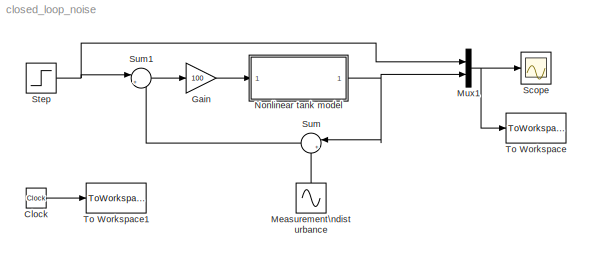
MODEL closed_loop_noise
KIND model
BLOCK [Clock] Clock
  SID = 36
BLOCK [Gain] Gain
  Gain = 100
  OutDataTypeStr = Inherit: Inherit via internal rule
  ParamDataTypeStr = Inherit: Inherit via internal rule
  SID = 10
  SaturateOnIntegerOverflow = off
BLOCK [Sin] Measurement\ndisturbance
  Amplitude = 0.1
  Frequency = 15
  Ports = [0, 1]
  SID = 34
  SampleTime = 0
BLOCK [Mux] Mux1
  DisplayOption = bar
  Inputs = 2
  Ports = [2, 1]
  SID = 12
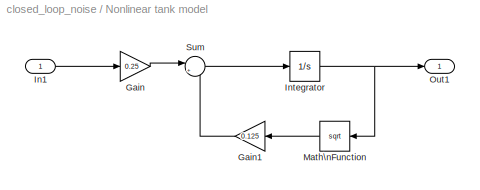
BLOCK [SubSystem] Nonlinear tank model
  Ports = [1, 1]
  RequestExecContextInheritance = off
  SID = 13
BLOCK [Gain] Nonlinear tank model/Gain
  Gain = 0.25
  OutDataTypeStr = Inherit: Inherit via internal rule
  ParamDataTypeStr = Inherit: Inherit via internal rule
  SID = 15
  SaturateOnIntegerOverflow = off
BLOCK [Gain] Nonlinear tank model/Gain1
  Gain = 0.125
  OutDataTypeStr = Inherit: Inherit via internal rule
  ParamDataTypeStr = Inherit: Inherit via internal rule
  SID = 16
  SaturateOnIntegerOverflow = off
BLOCK [Inport] Nonlinear tank model/In1
  IconDisplay = Port number
  SID = 14
BLOCK [Integrator] Nonlinear tank model/Integrator
  InitialCondition = 1
  Ports = [1, 1]
  SID = 17
BLOCK [Math] Nonlinear tank model/Math\nFunction
  Operator = sqrt
  Ports = [1, 1]
  SID = 18
BLOCK [Outport] Nonlinear tank model/Out1
  IconDisplay = Port number
  SID = 20
BLOCK [Sum] Nonlinear tank model/Sum
  IconShape = round
  InputSameDT = off
  Inputs = |+-
  OutDataTypeStr = Inherit: Inherit via internal rule
  Ports = [2, 1]
  SID = 19
  SaturateOnIntegerOverflow = off
BLOCK [Scope] Scope
  Floating = off
  NumInputPorts = 1
  Ports = [1]
  SID = 33
  ScopeSpecificationString = Simulink.scopes.TimeScopeBlockCfg('CurrentConfiguration', extmgr.ConfigurationSet(extmgr.Configuration('Core','General UI',true),extmgr.Configuration('Core','Source UI',true),extmgr.Configuration('Sources','WiredSimulink',true,'DataLoggingSaveFormat','StructureWithTime','DataLoggingDecimation','1','DataLoggingDecimateData',true),extmgr.Configuration('Visuals','Time Domain',true,'SerializedDisplays...<+1624ch>
BLOCK [Step] Step
  After = 1.8
  Before = 0.6
  SID = 22
  SampleTime = 0
  Time = 10
BLOCK [Sum] Sum
  IconShape = round
  InputSameDT = off
  Inputs = |++
  OutDataTypeStr = Inherit: Inherit via internal rule
  Ports = [2, 1]
  SID = 35
  SaturateOnIntegerOverflow = off
BLOCK [Sum] Sum1
  IconShape = round
  InputSameDT = off
  Inputs = |+-
  OutDataTypeStr = Inherit: Inherit via internal rule
  Ports = [2, 1]
  SID = 24
  SaturateOnIntegerOverflow = off
BLOCK [ToWorkspace] To Workspace
  MaxDataPoints = inf
  Ports = [1]
  SID = 38
  SampleTime = -1
  VariableName = CLC_n
BLOCK [ToWorkspace] To Workspace1
  MaxDataPoints = inf
  Ports = [1]
  SID = 37
  SampleTime = -1
  VariableName = CLC_n_time
LINE Clock:1 -> To Workspace1:1
LINE Gain:1 -> Nonlinear tank model:1
LINE Measurement\ndisturbance:1 -> Sum:2
NET Mux1:1 -> Scope:1, To Workspace:1
LINE Nonlinear tank model/Gain1:1 -> Nonlinear tank model/Sum:2
LINE Nonlinear tank model/Gain:1 -> Nonlinear tank model/Sum:1
LINE Nonlinear tank model/In1:1 -> Nonlinear tank model/Gain:1
NET Nonlinear tank model/Integrator:1 -> Nonlinear tank model/Math\nFunction:1, Nonlinear tank model/Out1:1
LINE Nonlinear tank model/Math\nFunction:1 -> Nonlinear tank model/Gain1:1
LINE Nonlinear tank model/Sum:1 -> Nonlinear tank model/Integrator:1
NET Nonlinear tank model:1 -> Mux1:2, Sum:1
NET Step:1 -> Mux1:1, Sum1:1
LINE Sum1:1 -> Gain:1
LINE Sum:1 -> Sum1:2
note: NET lines group one-source signal fan-out (src -> all destinations, sorted); 1:1 wires keep LINE
